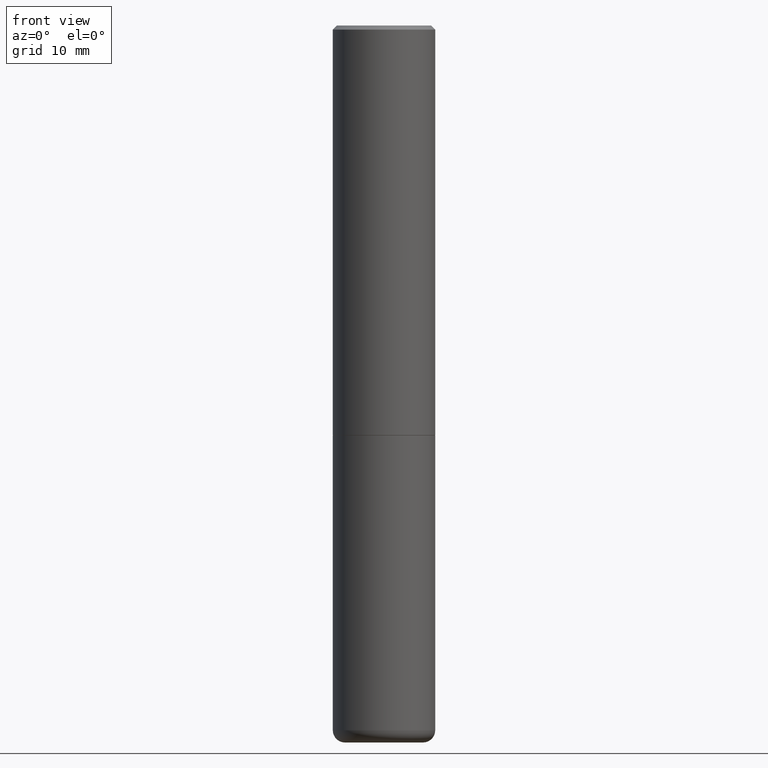
[diagram: clean part render]
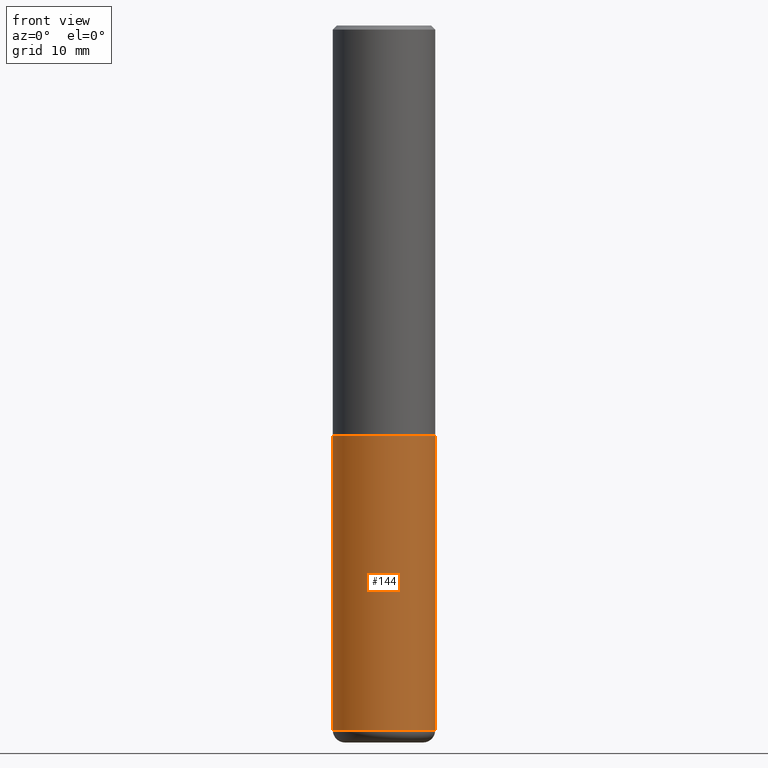
[diagram: same view with one face highlighted and labeled with its STEP entity id]
A machine part, front view. The second image highlights one B-rep face of the part: STEP entity #144.
In plain terms, the highlighted cylindrical surface (partial cylindrical patch) has radius 6.35 mm, axis along (-0, 0, 1).
Its self-contained STEP definition (entity closure, byte-faithful):
#9 = FACE_OUTER_BOUND ( 'NONE', #109, .T. ) ;
#54 = DIRECTION ( 'NONE',  ( -2.445468806185136597E-29, 3.491481338843145583E-15, 1.000000000000000000 ) ) ;
#61 = CARTESIAN_POINT ( 'NONE',  ( -0.2500000000000000000, -7.720472402253106025E-15, -2.000000000000000000 ) ) ;
#63 = DIRECTION ( 'NONE',  ( -2.445468806185136597E-29, 3.491481338843145583E-15, 1.000000000000000000 ) ) ;
#85 = CARTESIAN_POINT ( 'NONE',  ( 4.890937612370273194E-29, -6.982962677686291165E-15, -2.000000000000000000 ) ) ;
#89 = EDGE_CURVE ( 'NONE', #396, #331, #395, .T. ) ;
#102 = VERTEX_POINT ( 'NONE', #297 ) ;
#109 = EDGE_LOOP ( 'NONE', ( #360, #244, #215, #208 ) ) ;
#122 = CIRCLE ( 'NONE', #168, 0.2500000000000000000 ) ;
#144 = ADVANCED_FACE ( 'NONE', ( #9 ), #350, .T. ) ;
#168 = AXIS2_PLACEMENT_3D ( 'NONE', #85, #54, #304 ) ;
#177 = DIRECTION ( 'NONE',  ( -2.445468806185136877E-29, 3.491481338843145188E-15, 1.000000000000000000 ) ) ;
#185 = CIRCLE ( 'NONE', #210, 0.2500000000000000000 ) ;
#188 = DIRECTION ( 'NONE',  ( -2.445468806185136597E-29, 3.491481338843145583E-15, 1.000000000000000000 ) ) ;
#190 = VECTOR ( 'NONE', #177, 39.37007874015748143 ) ;
#194 = CARTESIAN_POINT ( 'NONE',  ( -0.2500000000000000000, 1.776356839400250465E-15, -1.229733772563726445E-29 ) ) ;
#208 = ORIENTED_EDGE ( 'NONE', *, *, #262, .F. ) ;
#210 = AXIS2_PLACEMENT_3D ( 'NONE', #218, #188, #332 ) ;
#215 = ORIENTED_EDGE ( 'NONE', *, *, #309, .T. ) ;
#218 = CARTESIAN_POINT ( 'NONE',  ( 8.412412693276869938E-29, -1.201069580562042103E-14, -3.439999999999999947 ) ) ;
#219 = CARTESIAN_POINT ( 'NONE',  ( 0.2500000000000000000, -1.745740669421566678E-15, 1.219044193948983948E-29 ) ) ;
#244 = ORIENTED_EDGE ( 'NONE', *, *, #349, .T. ) ;
#260 = CARTESIAN_POINT ( 'NONE',  ( -0.2499999999999999722, -1.023433896622016898E-14, -3.439999999999999947 ) ) ;
#261 = CARTESIAN_POINT ( 'NONE',  ( 0.000000000000000000, 0.000000000000000000, 0.000000000000000000 ) ) ;
#262 = EDGE_CURVE ( 'NONE', #331, #323, #122, .T. ) ;
#266 = DIRECTION ( 'NONE',  ( 1.000000000000000000, -6.982962677686266711E-15, 4.876176775795935793E-29 ) ) ;
#297 = CARTESIAN_POINT ( 'NONE',  ( 0.2499999999999999722, -1.375643647504198770E-14, -3.439999999999999947 ) ) ;
#304 = DIRECTION ( 'NONE',  ( 1.000000000000000000, -6.982962677686266711E-15, 0.000000000000000000 ) ) ;
#309 = EDGE_CURVE ( 'NONE', #102, #323, #376, .T. ) ;
#323 = VERTEX_POINT ( 'NONE', #410 ) ;
#331 = VERTEX_POINT ( 'NONE', #61 ) ;
#332 = DIRECTION ( 'NONE',  ( 1.000000000000000000, -6.982962677686270655E-15, 0.000000000000000000 ) ) ;
#340 = DIRECTION ( 'NONE',  ( -2.445468806185136877E-29, 3.491481338843145188E-15, 1.000000000000000000 ) ) ;
#349 = EDGE_CURVE ( 'NONE', #396, #102, #185, .T. ) ;
#350 = CYLINDRICAL_SURFACE ( 'NONE', #392, 0.2500000000000000000 ) ;
#356 = VECTOR ( 'NONE', #340, 39.37007874015748143 ) ;
#360 = ORIENTED_EDGE ( 'NONE', *, *, #89, .F. ) ;
#376 = LINE ( 'NONE', #219, #356 ) ;
#392 = AXIS2_PLACEMENT_3D ( 'NONE', #261, #63, #266 ) ;
#395 = LINE ( 'NONE', #194, #190 ) ;
#396 = VERTEX_POINT ( 'NONE', #260 ) ;
#410 = CARTESIAN_POINT ( 'NONE',  ( 0.2500000000000000000, -8.728703347107857054E-15, -2.000000000000000000 ) ) ;